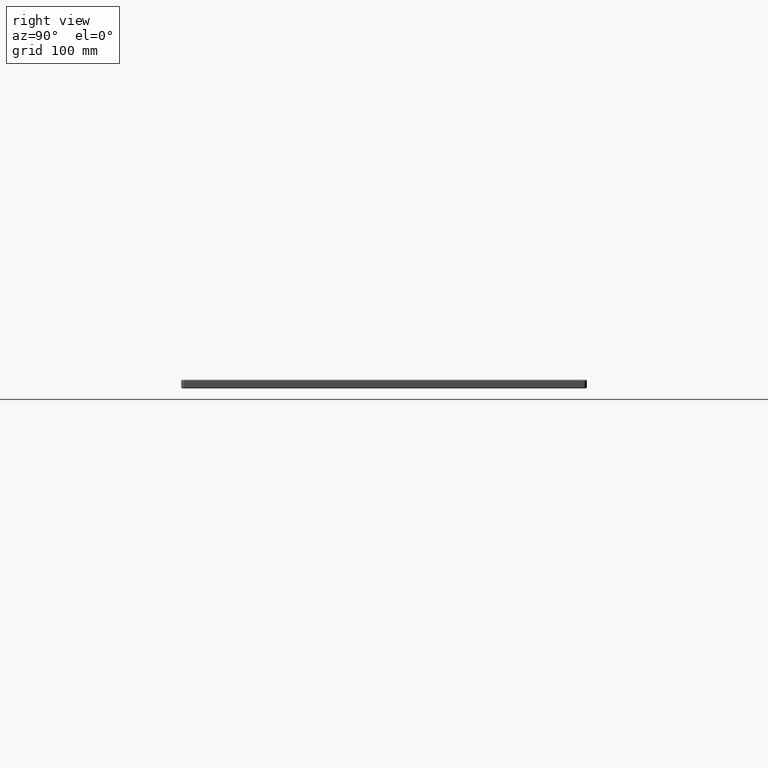
[diagram: clean part render]
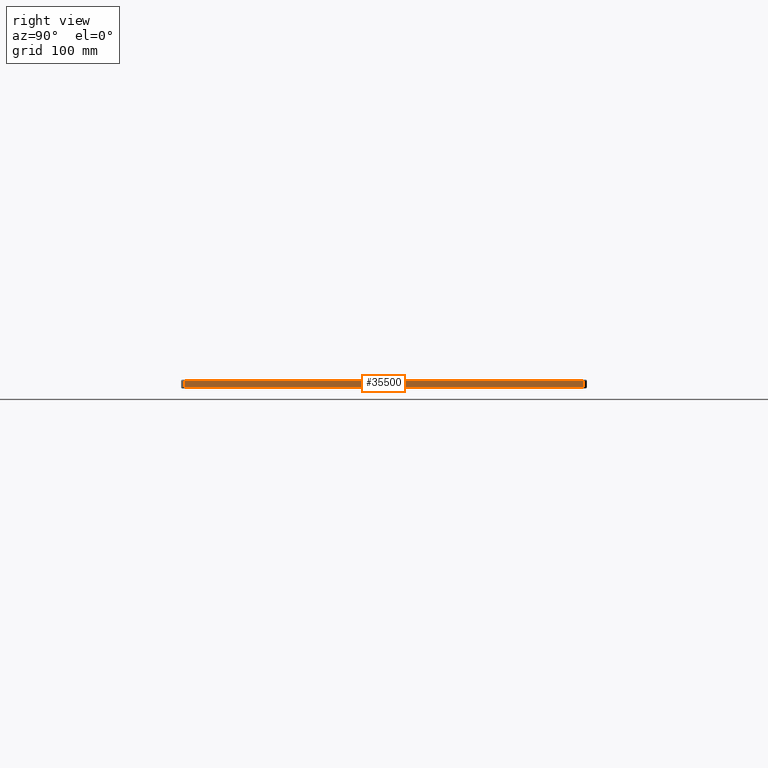
[diagram: same view with one face highlighted and labeled with its STEP entity id]
A machine part, right view. The second image highlights one B-rep face of the part: STEP entity #35500.
In plain terms, the highlighted planar face has unit normal (1, 0, -0).
Its self-contained STEP definition (entity closure, byte-faithful):
#1676 = LINE ( 'NONE', #34173, #38543 ) ;
#4112 = DIRECTION ( 'NONE',  ( 1.000000000000000000, 1.850371707708595100E-016, -0.0000000000000000000 ) ) ;
#4538 = PLANE ( 'NONE',  #23577 ) ;
#4639 = FACE_OUTER_BOUND ( 'NONE', #13091, .T. ) ;
#4729 = DIRECTION ( 'NONE',  ( -1.850371707708595100E-016, 1.000000000000000000, 0.0000000000000000000 ) ) ;
#5127 = VERTEX_POINT ( 'NONE', #36185 ) ;
#7741 = LINE ( 'NONE', #12317, #56506 ) ;
#10432 = DIRECTION ( 'NONE',  ( 0.0000000000000000000, 0.0000000000000000000, 1.000000000000000000 ) ) ;
#12317 = CARTESIAN_POINT ( 'NONE',  ( 900.0000000000000000, 0.0000000000000000000, -11.00000000000000000 ) ) ;
#13091 = EDGE_LOOP ( 'NONE', ( #43421, #21478, #20559, #55687 ) ) ;
#18552 = CARTESIAN_POINT ( 'NONE',  ( 900.0000000000000000, 0.0000000000000000000, -13.00000000000000000 ) ) ;
#18565 = CARTESIAN_POINT ( 'NONE',  ( 900.0000000000000000, 5.000000000000000000, -2.000000000000000000 ) ) ;
#20559 = ORIENTED_EDGE ( 'NONE', *, *, #47229, .T. ) ;
#21203 = VECTOR ( 'NONE', #21726, 1000.000000000000000 ) ;
#21478 = ORIENTED_EDGE ( 'NONE', *, *, #28922, .T. ) ;
#21726 = DIRECTION ( 'NONE',  ( -0.0000000000000000000, -0.0000000000000000000, -1.000000000000000000 ) ) ;
#21941 = CARTESIAN_POINT ( 'NONE',  ( 900.0000000000000000, 5.000000000000000000, -13.00000000000000000 ) ) ;
#22249 = CARTESIAN_POINT ( 'NONE',  ( 899.9999999999998900, 594.9999999999997700, -2.000000000000000000 ) ) ;
#23577 = AXIS2_PLACEMENT_3D ( 'NONE', #18552, #4112, #4729 ) ;
#28754 = VECTOR ( 'NONE', #43855, 1000.000000000000000 ) ;
#28922 = EDGE_CURVE ( 'NONE', #5127, #44873, #7741, .T. ) ;
#30262 = LINE ( 'NONE', #53754, #28754 ) ;
#34173 = CARTESIAN_POINT ( 'NONE',  ( 899.9999999999998900, 594.9999999999997700, -13.00000000000000000 ) ) ;
#35500 = ADVANCED_FACE ( 'NONE', ( #4639 ), #4538, .T. ) ;
#36185 = CARTESIAN_POINT ( 'NONE',  ( 900.0000000000000000, 5.000000000000000000, -11.00000000000000000 ) ) ;
#38543 = VECTOR ( 'NONE', #10432, 1000.000000000000000 ) ;
#39419 = CARTESIAN_POINT ( 'NONE',  ( 899.9999999999998900, 594.9999999999997700, -11.00000000000000000 ) ) ;
#40376 = LINE ( 'NONE', #21941, #21203 ) ;
#41578 = EDGE_CURVE ( 'NONE', #58308, #5127, #40376, .T. ) ;
#42553 = VERTEX_POINT ( 'NONE', #22249 ) ;
#43421 = ORIENTED_EDGE ( 'NONE', *, *, #41578, .T. ) ;
#43855 = DIRECTION ( 'NONE',  ( 1.850371707708595100E-016, -1.000000000000000000, -0.0000000000000000000 ) ) ;
#44873 = VERTEX_POINT ( 'NONE', #39419 ) ;
#45373 = DIRECTION ( 'NONE',  ( -1.850371707708595100E-016, 1.000000000000000000, 0.0000000000000000000 ) ) ;
#47229 = EDGE_CURVE ( 'NONE', #44873, #42553, #1676, .T. ) ;
#50517 = EDGE_CURVE ( 'NONE', #42553, #58308, #30262, .T. ) ;
#53754 = CARTESIAN_POINT ( 'NONE',  ( 900.0000000000000000, 5.000000000000000000, -2.000000000000000000 ) ) ;
#55687 = ORIENTED_EDGE ( 'NONE', *, *, #50517, .T. ) ;
#56506 = VECTOR ( 'NONE', #45373, 1000.000000000000000 ) ;
#58308 = VERTEX_POINT ( 'NONE', #18565 ) ;